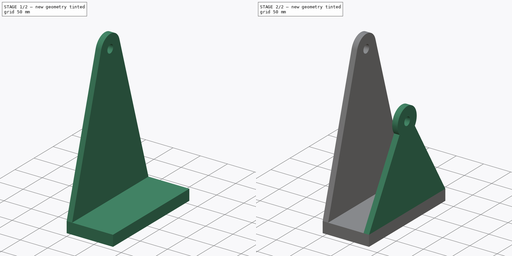
[diagram: build sequence overview — one tinted view per stage of 2, left to right]
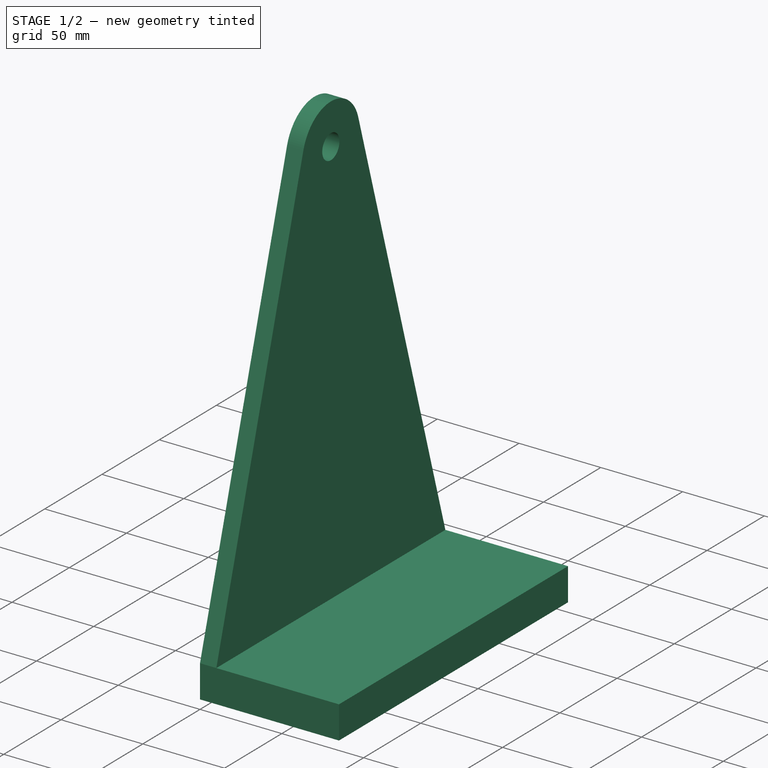
[diagram: stage 1 of 2 — iso view after this stage's code; geometry added in this stage tinted green]
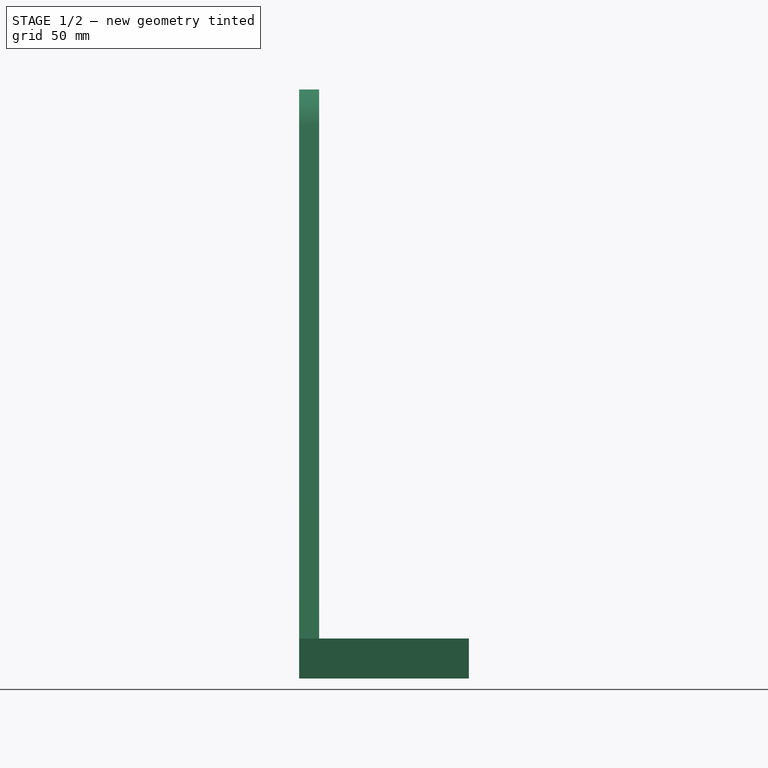
[diagram: stage 1 of 2 — front view after this stage's code; geometry added in this stage tinted green]
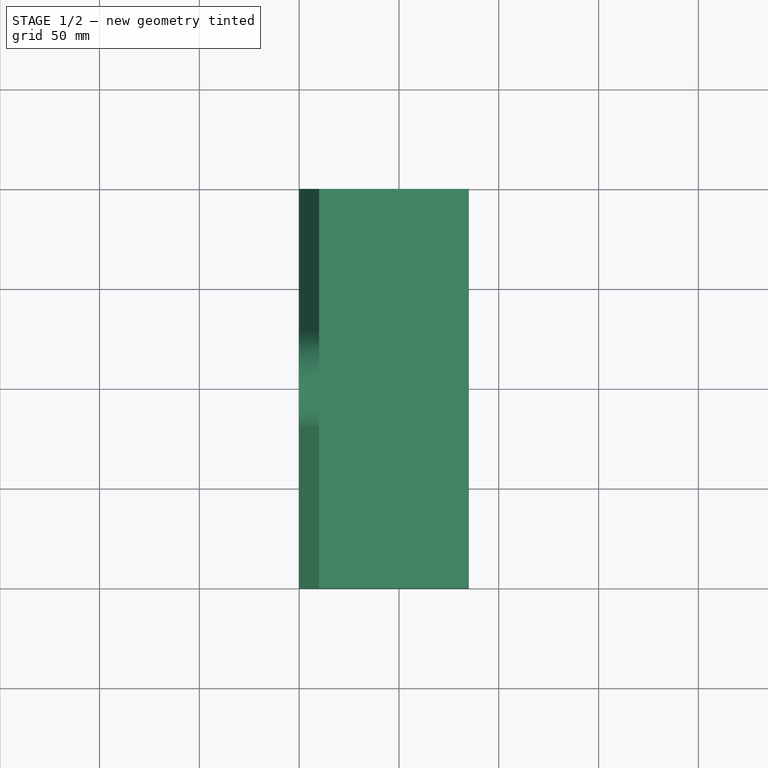
[diagram: stage 1 of 2 — top view after this stage's code; geometry added in this stage tinted green]
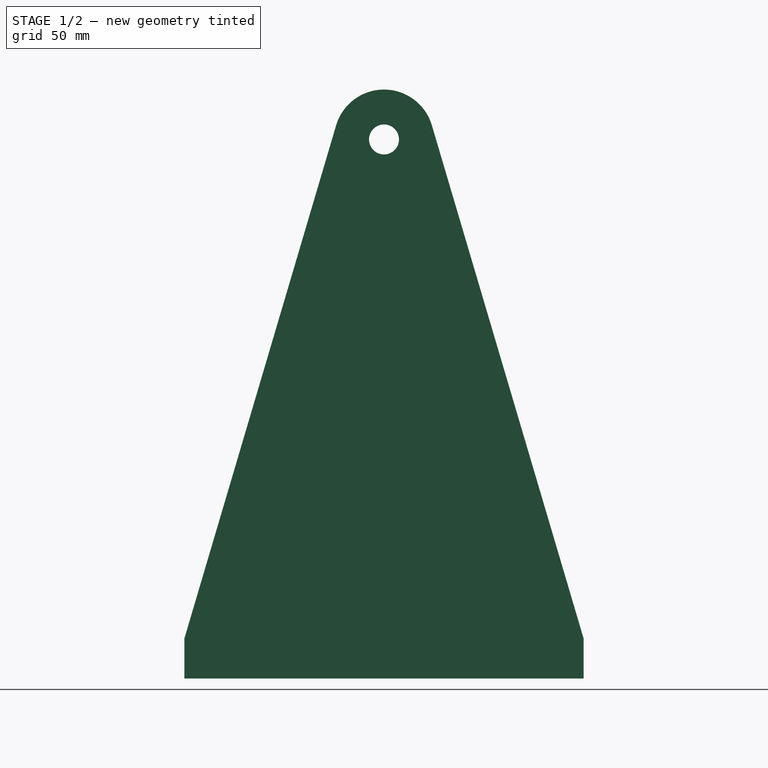
[diagram: stage 1 of 2 — right view after this stage's code; geometry added in this stage tinted green]
FCSTD DOCUMENT  (FreeCAD 0.18R16268 (Git))
Label: Support
License: All rights reserved
LicenseURL: http://en.wikipedia.org/wiki/All_rights_reserved
objects: Sketcher::SketchObject×3, PartDesign::Pad×3, PartDesign::CoordinateSystem×2, App::DocumentObjectGroup×1, PartDesign::Body×1, App::Part×1
note: 12 computed .brp shape members not serialized (recipe doc carries the construction recipe); baked Part::Feature solids carry a one-line shape summary decoded from their .brp

FEATURE [App::DocumentObjectGroup] Constraints
FEATURE [PartDesign::CoordinateSystem] LCS_0
  AttacherType = Attacher::AttachEngine3D
FEATURE [Sketcher::SketchObject] Sketch_0
  MapMode = 4
  Placement = pos=(0,0,0) rot=(0.57735,0.57735,0.57735;2.0944rad)
  Support = -> [LCS_0]
  sketch-geometry (5):
    g0: Circle CenterX=0 CenterY=0 CenterZ=0 NormalX=0 NormalY=0 NormalZ=1 AngleXU=0 Radius=7.5
    g1: ArcOfCircle CenterX=0 CenterY=0 CenterZ=0 NormalX=0 NormalY=0 NormalZ=1 AngleXU=0 Radius=25 StartAngle=0.287525 EndAngle=2.85407
    g2: LineSegment StartX=-23.9737 StartY=7.08949 StartZ=0 EndX=-100 EndY=-250 EndZ=0
    g3: LineSegment StartX=23.9737 StartY=7.08949 StartZ=0 EndX=100 EndY=-250 EndZ=0
    g4: LineSegment StartX=-100 StartY=-250 StartZ=0 EndX=100 EndY=-250 EndZ=0
  constraints (12):
    c: Coincident(g0,g-1)
    c: Coincident(g1,g0)
    c: Symmetric(g1,g1,g-2)
    c: Coincident(g4,g2)
    c: Coincident(g4,g3)
    c: Symmetric(g2,g3,g-2)
    c: Tangent(g2,g1) = -1.5708
    c: Coincident(g1,g3)
    c: Distance(g0,g4) = 250
    c: DistanceX(g4,g4) = 200
    c: Diameter(g0) = 15
    c: Diameter(g1) = 50
FEATURE [PartDesign::CoordinateSystem] LCS_triangle
  AttacherType = Attacher::AttachEngine3D
  AttachmentOffset = pos=(85,0,-100) rot=(0,0,1;0rad)
  MapMode = 2
  Placement = pos=(85,0,-100) rot=(0,0,1;0rad)
  Support = -> [LCS_0]
FEATURE [Sketcher::SketchObject] Sketch_1
  ExternalGeometry = -> [Sketch_0]
  MapMode = 4
  Placement = pos=(85,0,-100) rot=(0.57735,0.57735,0.57735;2.0944rad)
  Support = -> [LCS_triangle]
  sketch-geometry (5):
    g0: Circle CenterX=0 CenterY=0 CenterZ=0 NormalX=0 NormalY=0 NormalZ=1 AngleXU=0 Radius=7.5
    g1: ArcOfCircle CenterX=0 CenterY=0 CenterZ=0 NormalX=0 NormalY=0 NormalZ=1 AngleXU=0 Radius=25 StartAngle=5.63968 EndAngle=10.0683
    g2: LineSegment StartX=-100 StartY=-150 StartZ=0 EndX=-20 EndY=-15 EndZ=0
    g3: LineSegment StartX=20 StartY=-15 StartZ=0 EndX=100 EndY=-150 EndZ=0
    g4: LineSegment StartX=100 StartY=-150 StartZ=0 EndX=-100 EndY=-150 EndZ=0
  constraints (12):
    c: Coincident(g0,g-1)
    c: Coincident(g1,g0)
    c: Symmetric(g1,g1,g-2)
    c: Coincident(g2,g-3)
    c: Coincident(g2,g1)
    c: Coincident(g3,g1)
    c: Coincident(g3,g-3)
    c: Coincident(g4,g3)
    c: Coincident(g4,g2)
    c: Diameter(g0) = 15
    c: Diameter(g1) = 50
    c: DistanceX(g1,g1) = 40
FEATURE [Sketcher::SketchObject] Sketch_2
  ExternalGeometry = -> [Sketch_0]
  MapMode = 4
  Placement = pos=(0,0,0) rot=(0.57735,0.57735,0.57735;2.0944rad)
  Support = -> [LCS_0]
  sketch-geometry (4):
    g0: LineSegment StartX=-100 StartY=-250 StartZ=0 EndX=100 EndY=-250 EndZ=0
    g1: LineSegment StartX=100 StartY=-250 StartZ=0 EndX=100 EndY=-270 EndZ=0
    g2: LineSegment StartX=100 StartY=-270 StartZ=0 EndX=-100 EndY=-270 EndZ=0
    g3: LineSegment StartX=-100 StartY=-270 StartZ=0 EndX=-100 EndY=-250 EndZ=0
  constraints (10):
    c: Coincident(g0,g1)
    c: Coincident(g1,g2)
    c: Coincident(g2,g3)
    c: Coincident(g3,g0)
    c: Horizontal(g2)
    c: Vertical(g1)
    c: Vertical(g3)
    c: Coincident(g0,g-3)
    c: Coincident(g-3,g0)
    c: DistanceY(g1,g1) = 20
FEATURE [PartDesign::Pad] Pad
  ClaimChildren = false
  Length = 10
  Length2 = 100
  Profile = -> Sketch_0
  Type = 0
FEATURE [PartDesign::Pad] Pad001
  BaseFeature = -> Pad
  ClaimChildren = false
  Length = 85
  Length2 = 100
  Profile = -> Sketch_2
  Type = 0
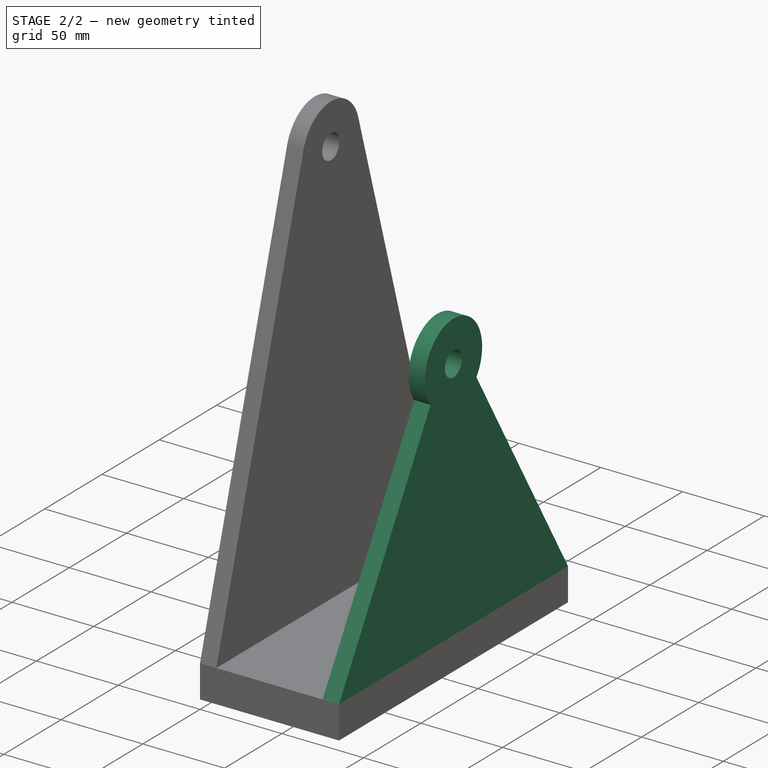
[diagram: stage 2 of 2 — iso view after this stage's code; geometry added in this stage tinted green]
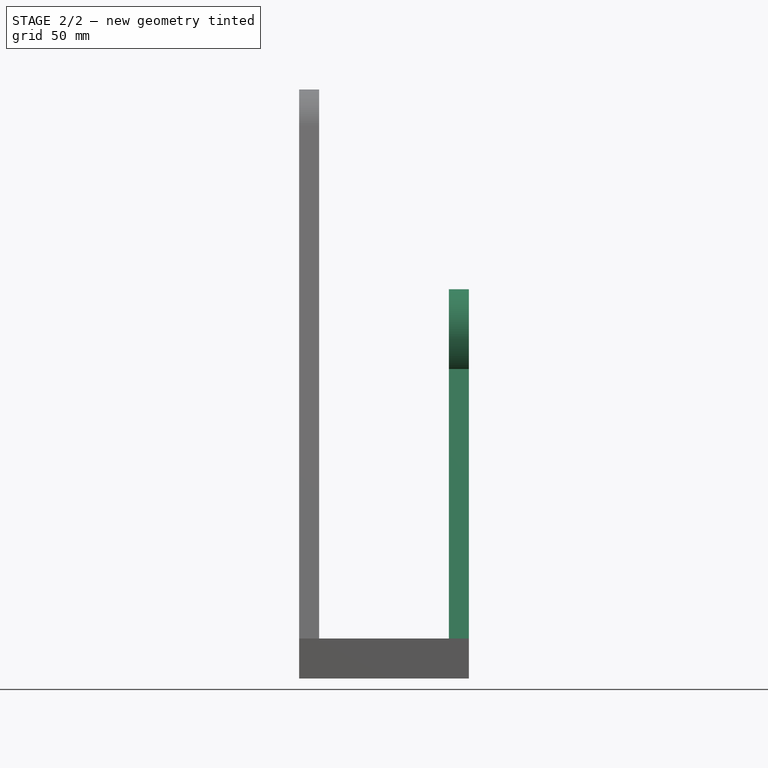
[diagram: stage 2 of 2 — front view after this stage's code; geometry added in this stage tinted green]
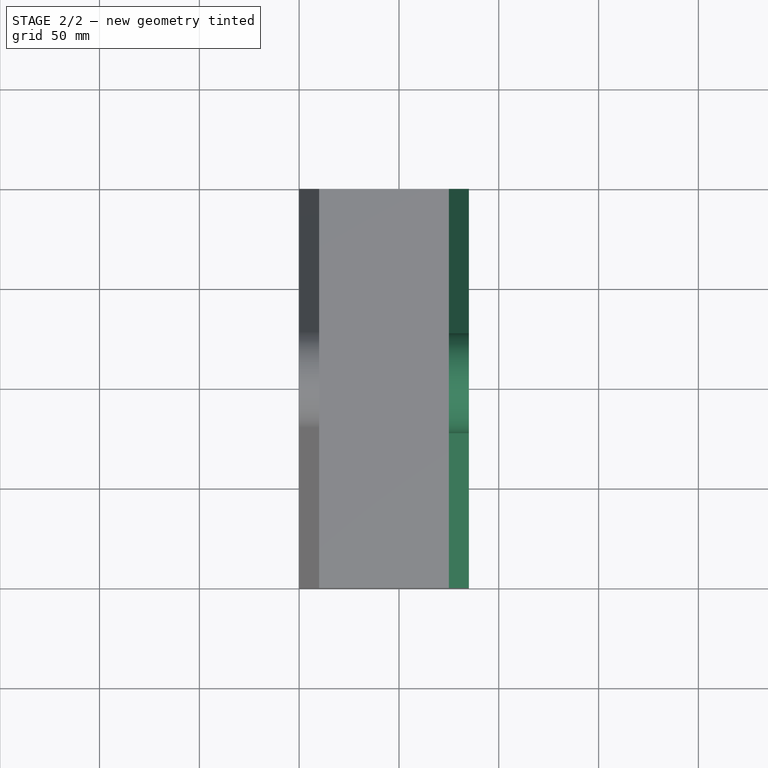
[diagram: stage 2 of 2 — top view after this stage's code; geometry added in this stage tinted green]
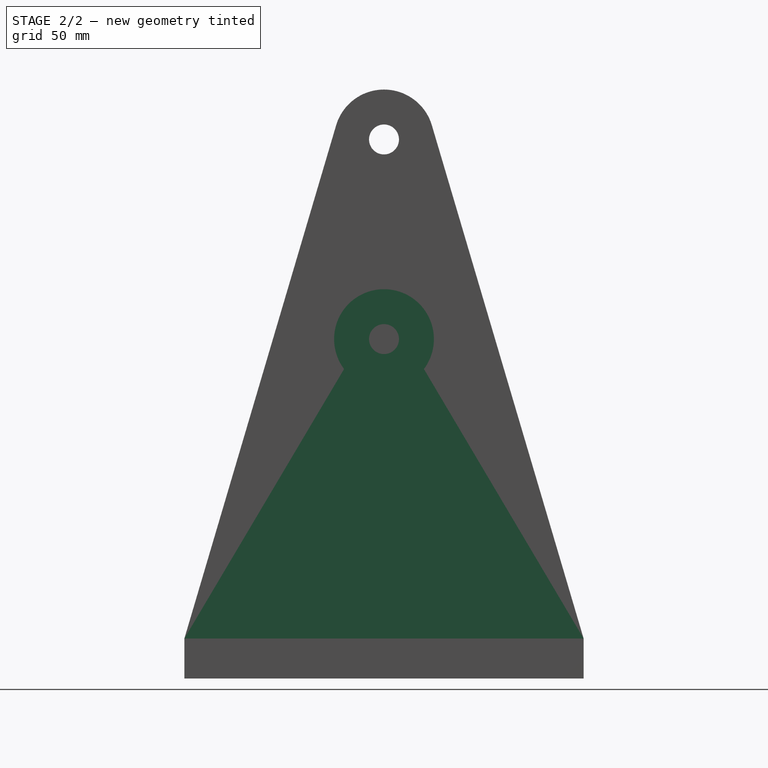
[diagram: stage 2 of 2 — right view after this stage's code; geometry added in this stage tinted green]
FEATURE [PartDesign::Pad] Pad002
  BaseFeature = -> Pad001
  ClaimChildren = false
  Length = 10
  Length2 = 100
  Profile = -> Sketch_1
  Reversed = true
  Type = 0
FEATURE [PartDesign::Body] Body
  Group = -> [Pad,Pad001,Pad002]
  Origin = -> Origin001
  Tip = -> Pad002
FEATURE [App::Part] Model
  Group = -> [Constraints,LCS_0,Sketch_0,LCS_triangle,Sketch_1,Sketch_2,Body]
  Origin = -> Origin
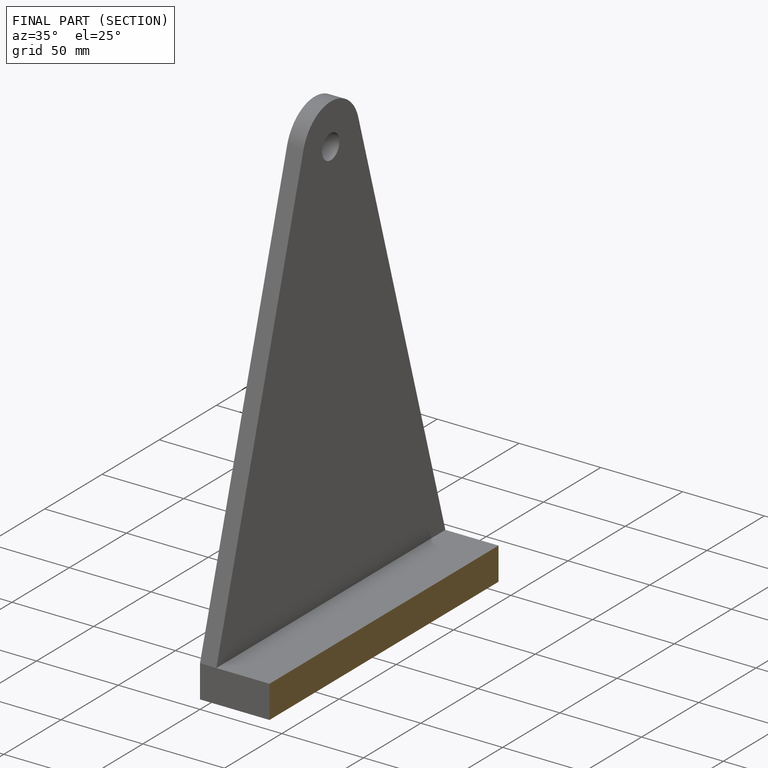
[diagram: finished part — half-section view (interior)]
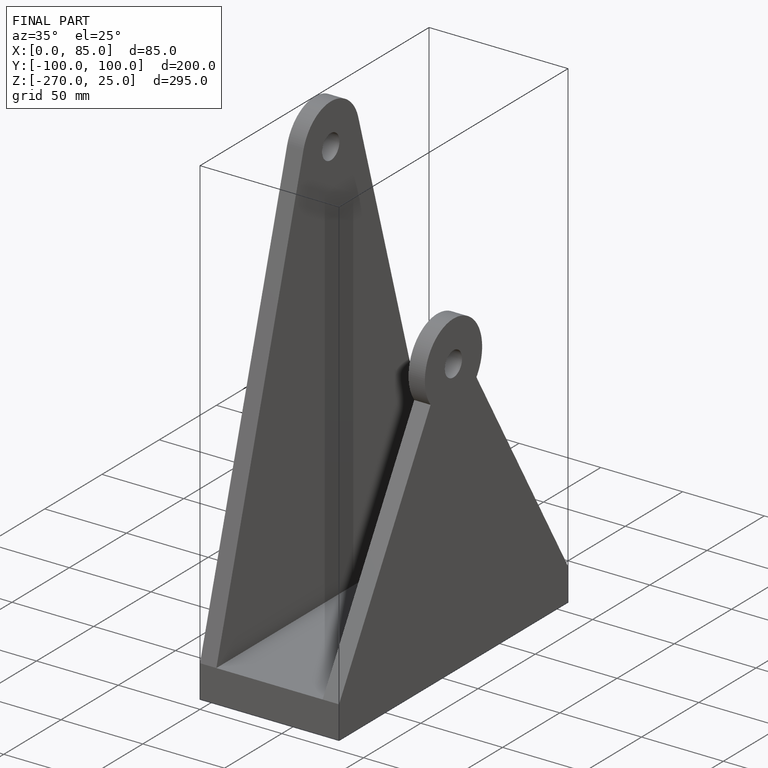
[diagram: finished part — iso view with bounding-box wireframe]
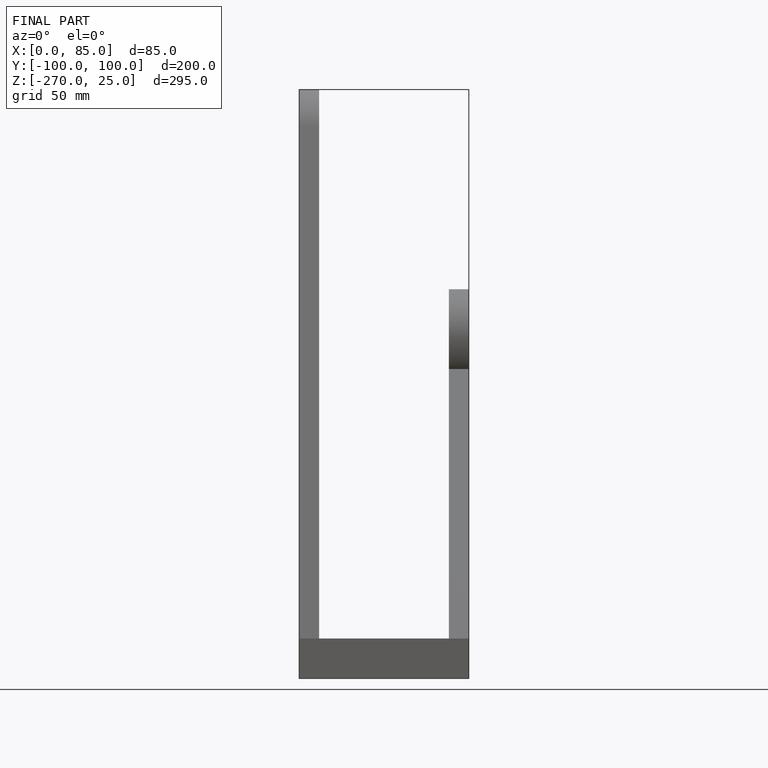
[diagram: finished part — front view with bounding-box wireframe]
